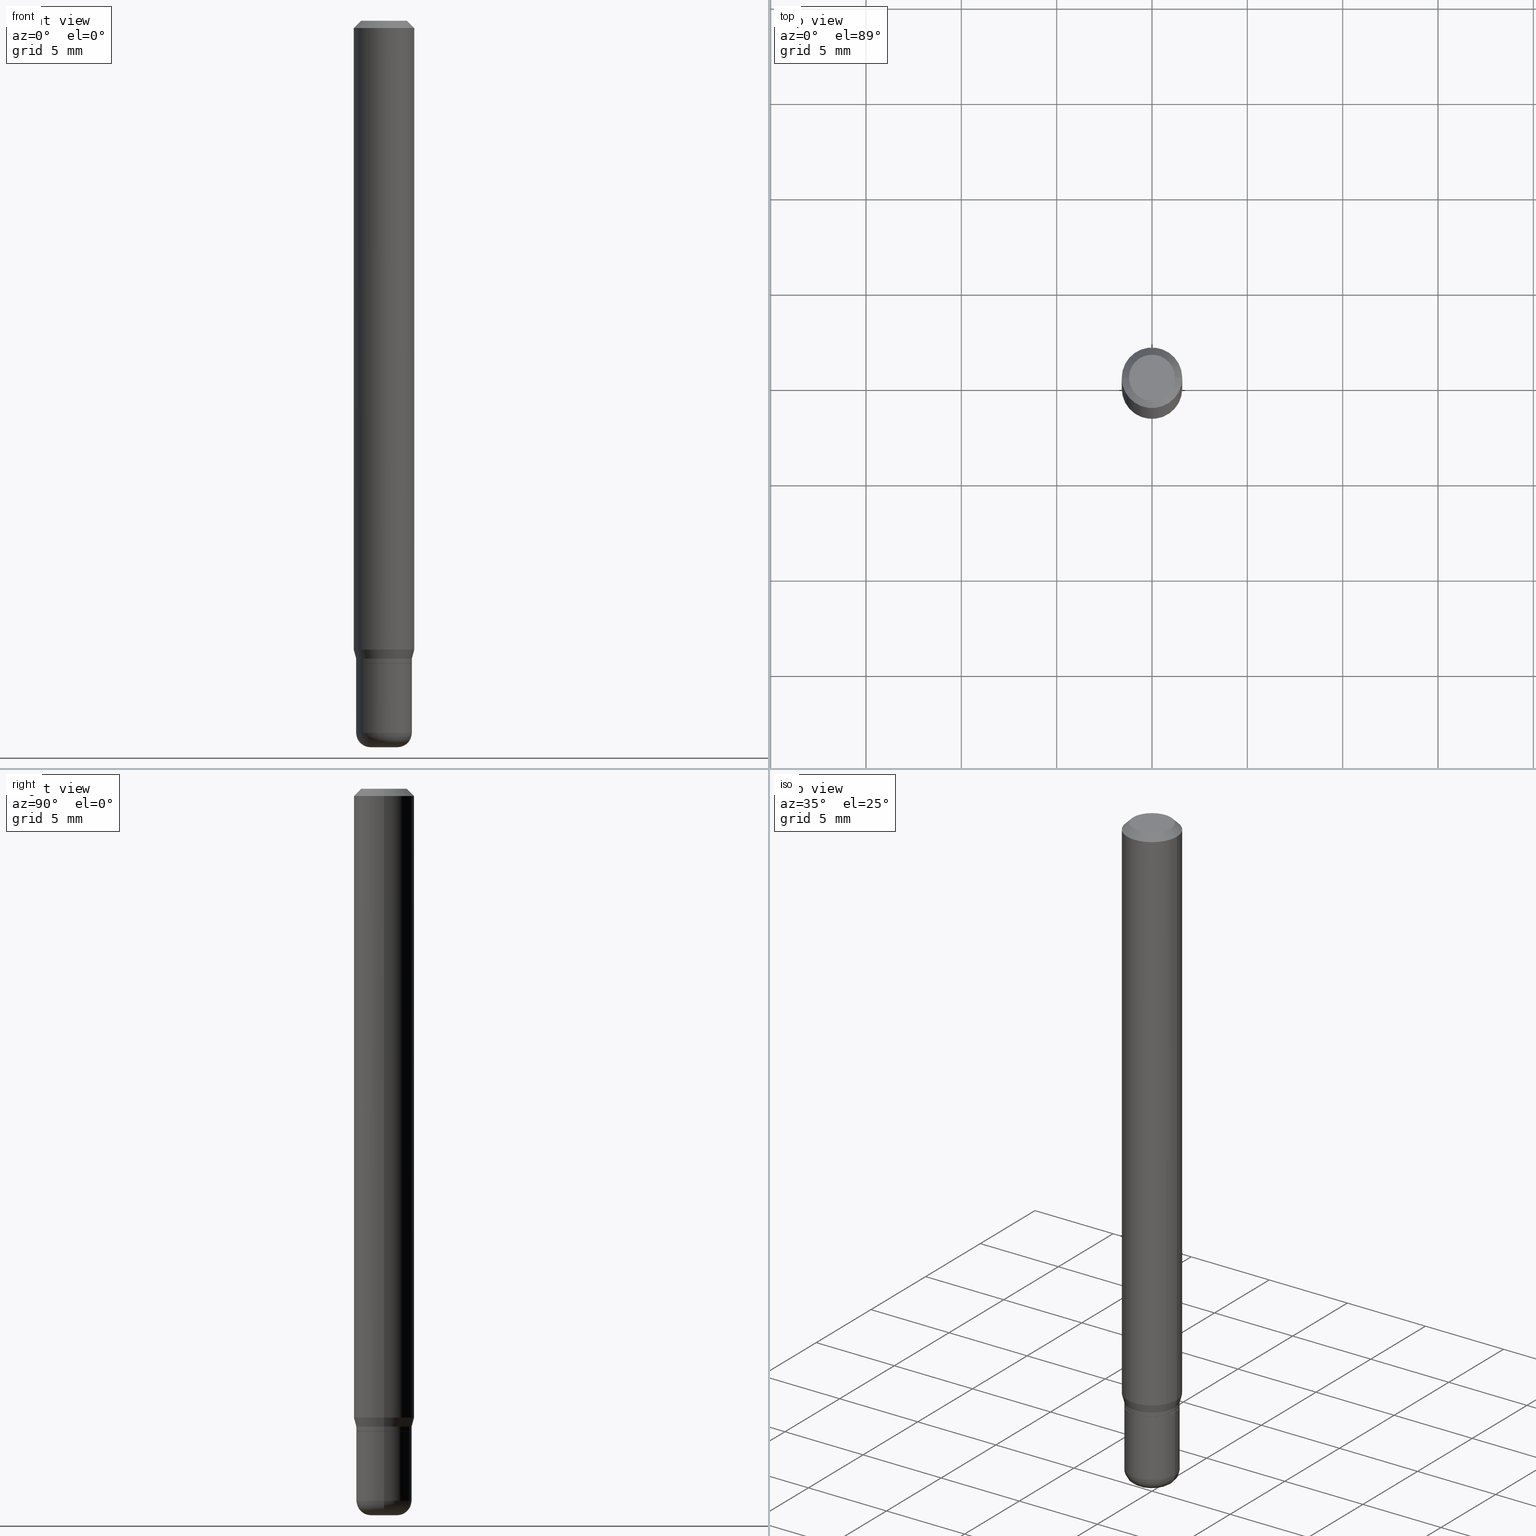
[diagram: canonical four-view strip — front | top / right | iso, engineering-drawing reading convention]
A machine part, canonical four-view strip (front | top / right | iso — engineering-drawing reading convention). The complete STEP part file that produces these views, byte-faithful:
ISO-10303-21;
HEADER;
FILE_DESCRIPTION (( 'STEP AP203' ),
    '1' );
FILE_NAME ('09254.STEP',
    '2024-03-01T00:03:34',
    ( '' ),
    ( '' ),
    'SwSTEP 2.0',
    'SolidWorks 2023',
    '' );
FILE_SCHEMA (( 'CONFIG_CONTROL_DESIGN' ));
ENDSEC;

DATA;
#1 = DIRECTION ( 'NONE',  ( -2.445468806185136597E-29, 3.491481338843145583E-15, 1.000000000000000000 ) ) ;
#2 = PRODUCT_DEFINITION ( 'UNKNOWN', '', #359, #382 ) ;
#3 = VERTEX_POINT ( 'NONE', #70 ) ;
#4 = ORIENTED_EDGE ( 'NONE', *, *, #450, .T. ) ;
#5 = CIRCLE ( 'NONE', #306, 0.02750000000000001055 ) ;
#6 = AXIS2_PLACEMENT_3D ( 'NONE', #20, #425, #222 ) ;
#7 = MECHANICAL_CONTEXT ( 'NONE', #226, 'mechanical' ) ;
#8 = PLANE ( 'NONE',  #511 ) ;
#9 = DATE_AND_TIME ( #36, #414 ) ;
#10 = ORIENTED_EDGE ( 'NONE', *, *, #198, .F. ) ;
#11 = ORIENTED_EDGE ( 'NONE', *, *, #384, .F. ) ;
#12 = LENGTH_MEASURE_WITH_UNIT ( LENGTH_MEASURE( 0.02539999999999999897 ), #252 );
#13 = ORIENTED_EDGE ( 'NONE', *, *, #487, .F. ) ;
#14 = DIRECTION ( 'NONE',  ( 1.000000000000000000, -6.982962677686265922E-15, 4.876176775795935793E-29 ) ) ;
#15 = CIRCLE ( 'NONE', #320, 0.05700000000000005757 ) ;
#16 = EDGE_CURVE ( 'NONE', #410, #67, #168, .T. ) ;
#17 = ORIENTED_EDGE ( 'NONE', *, *, #228, .T. ) ;
#18 = DIRECTION ( 'NONE',  ( 1.000000000000000000, -6.982962677686274599E-15, 0.000000000000000000 ) ) ;
#19 = FACE_OUTER_BOUND ( 'NONE', #256, .T. ) ;
#20 = CARTESIAN_POINT ( 'NONE',  ( -6.680649051745406845E-45, 9.538196290434862081E-31, 2.731847993664263218E-16 ) ) ;
#21 = CARTESIAN_POINT ( 'NONE',  ( -0.05750000000000000250, -4.474274579310081177E-15, -1.327000000000000179 ) ) ;
#22 = CARTESIAN_POINT ( 'NONE',  ( -0.02750000000000001055, -4.882869125484029039E-15, -1.500000000000000444 ) ) ;
#23 = ORIENTED_EDGE ( 'NONE', *, *, #78, .T. ) ;
#24 = DIRECTION ( 'NONE',  ( 1.000000000000000000, -6.982962677686266711E-15, 0.000000000000000000 ) ) ;
#25 = ADVANCED_FACE ( 'NONE', ( #137 ), #232, .T. ) ;
#26 = AXIS2_PLACEMENT_3D ( 'NONE', #328, #415, #362 ) ;
#27 = APPROVAL_PERSON_ORGANIZATION ( #187, #111, #153 ) ;
#28 = CARTESIAN_POINT ( 'NONE',  ( 0.04750000000000000749, -4.035134999187568762E-16, 2.731847993664288856E-16 ) ) ;
#29 = PERSON ( 'UNSPECIFIED', 'UNSPECIFIED', 'UNSPECIFIED', ('UNSPECIFIED'), ('UNSPECIFIED'), ('UNSPECIFIED') ) ;
#30 = CARTESIAN_POINT ( 'NONE',  ( 3.668203209277632395E-31, -5.237222008264614861E-17, -0.01499999999999970281 ) ) ;
#31 = AXIS2_PLACEMENT_3D ( 'NONE', #188, #183, #150 ) ;
#32 = DIRECTION ( 'NONE',  ( 1.000000000000000000, -6.982962677686262766E-15, 0.000000000000000000 ) ) ;
#33 = PERSON_AND_ORGANIZATION ( #29, #398 ) ;
#34 = DATE_AND_TIME ( #166, #192 ) ;
#35 = DIRECTION ( 'NONE',  ( -2.445468806185136877E-29, 3.491481338843145188E-15, 1.000000000000000000 ) ) ;
#36 = CALENDAR_DATE ( 2024, 29, 2 ) ;
#37 = VERTEX_POINT ( 'NONE', #219 ) ;
#38 = EDGE_CURVE ( 'NONE', #143, #410, #141, .T. ) ;
#39 = DIRECTION ( 'NONE',  ( -2.445468806185136597E-29, 3.491481338843145583E-15, 1.000000000000000000 ) ) ;
#40 = VECTOR ( 'NONE', #83, 39.37007874015748854 ) ;
#41 = CC_DESIGN_APPROVAL ( #146, ( #359 ) ) ;
#42 = DIRECTION ( 'NONE',  ( -2.445468806185136877E-29, 3.491481338843145188E-15, 1.000000000000000000 ) ) ;
#43 = CALENDAR_DATE ( 2024, 29, 2 ) ;
#44 = ORIENTED_EDGE ( 'NONE', *, *, #321, .T. ) ;
#45 = EDGE_LOOP ( 'NONE', ( #285, #95, #404, #480 ) ) ;
#46 = ORIENTED_EDGE ( 'NONE', *, *, #356, .T. ) ;
#47 = EDGE_LOOP ( 'NONE', ( #84, #327, #48, #458 ) ) ;
#48 = ORIENTED_EDGE ( 'NONE', *, *, #117, .F. ) ;
#49 = AXIS2_PLACEMENT_3D ( 'NONE', #184, #303, #467 ) ;
#50 = DIRECTION ( 'NONE',  ( -1.000000000000000000, 6.982962677686266711E-15, 0.000000000000000000 ) ) ;
#51 = DIRECTION ( 'NONE',  ( -2.445468806185136597E-29, 3.491481338843145583E-15, 1.000000000000000000 ) ) ;
#52 = DATE_TIME_ROLE ( 'classification_date' ) ;
#53 = DIRECTION ( 'NONE',  ( -2.445468806185136877E-29, 3.491481338843145188E-15, 1.000000000000000000 ) ) ;
#54 = EDGE_CURVE ( 'NONE', #344, #3, #418, .T. ) ;
#55 = CARTESIAN_POINT ( 'NONE',  ( 3.668203209277706016E-29, -5.237222008264719754E-15, -1.500000000000000444 ) ) ;
#56 = DIRECTION ( 'NONE',  ( -2.445468806185136597E-29, 3.491481338843145583E-15, 1.000000000000000000 ) ) ;
#57 = EDGE_LOOP ( 'NONE', ( #459, #336 ) ) ;
#58 = DIRECTION ( 'NONE',  ( 0.000000000000000000, 0.000000000000000000, 1.000000000000000000 ) ) ;
#59 = CARTESIAN_POINT ( 'NONE',  ( 3.245137105807676860E-29, -4.633195736644854276E-15, -1.327000000000000179 ) ) ;
#60 = VECTOR ( 'NONE', #464, 39.37007874015748143 ) ;
#61 = CIRCLE ( 'NONE', #495, 0.05750000000000012046 ) ;
#62 = AXIS2_PLACEMENT_3D ( 'NONE', #189, #151, #392 ) ;
#63 = ORIENTED_EDGE ( 'NONE', *, *, #278, .T. ) ;
#64 = ORIENTED_EDGE ( 'NONE', *, *, #130, .T. ) ;
#65 = DIRECTION ( 'NONE',  ( -2.445468806185136597E-29, 3.491481338843145583E-15, 1.000000000000000000 ) ) ;
#66 = CALENDAR_DATE ( 2024, 29, 2 ) ;
#67 = VERTEX_POINT ( 'NONE', #301 ) ;
#68 = FACE_OUTER_BOUND ( 'NONE', #209, .T. ) ;
#69 = PRODUCT_RELATED_PRODUCT_CATEGORY ( 'detail', '', ( #510 ) ) ;
#70 = CARTESIAN_POINT ( 'NONE',  ( 0.05750000000000000250, -5.034716090611815085E-15, -1.327000000000000179 ) ) ;
#71 = AXIS2_PLACEMENT_3D ( 'NONE', #215, #264, #261 ) ;
#72 = DIRECTION ( 'NONE',  ( -0.7071067811865479058, 2.468850131082261005E-15, -0.7071067811865471286 ) ) ;
#73 = MANIFOLD_SOLID_BREP ( 'Body-Move/Copy2[2]', #433 ) ;
#74 = PERSON_AND_ORGANIZATION_ROLE ( 'creator' ) ;
#75 = DATE_AND_TIME ( #239, #161 ) ;
#76 = CARTESIAN_POINT ( 'NONE',  ( -0.05750000000000005801, 4.085620730620580191E-16, -2.828387676896573865E-30 ) ) ;
#77 = TOROIDAL_SURFACE ( 'NONE', #62, 0.02750000000000000014, 0.03000000000000011685 ) ;
#78 = EDGE_CURVE ( 'NONE', #411, #318, #15, .T. ) ;
#79 = EDGE_LOOP ( 'NONE', ( #490, #389, #492, #123 ) ) ;
#80 = PERSON_AND_ORGANIZATION ( #29, #398 ) ;
#81 = APPROVAL_DATE_TIME ( #34, #111 ) ;
#82 = DIRECTION ( 'NONE',  ( -2.445468806185136597E-29, 3.491481338843145583E-15, 1.000000000000000000 ) ) ;
#83 = DIRECTION ( 'NONE',  ( -0.2588190451025189631, 5.211531920934535265E-15, 0.9659258262890687563 ) ) ;
#84 = ORIENTED_EDGE ( 'NONE', *, *, #271, .T. ) ;
#85 = AXIS2_PLACEMENT_3D ( 'NONE', #432, #395, #311 ) ;
#86 = DIRECTION ( 'NONE',  ( 1.000000000000000000, -6.982962677686263555E-15, 0.000000000000000000 ) ) ;
#87 = AXIS2_PLACEMENT_3D ( 'NONE', #273, #82, #86 ) ;
#88 = APPROVAL_STATUS ( 'not_yet_approved' ) ;
#89 = DIRECTION ( 'NONE',  ( 0.7071067811866199593, -2.468850131083015945E-15, 0.7071067811864750752 ) ) ;
#90 = ORIENTED_EDGE ( 'NONE', *, *, #400, .F. ) ;
#91 = FACE_OUTER_BOUND ( 'NONE', #99, .T. ) ;
#92 = DIRECTION ( 'NONE',  ( -2.445468806185136597E-29, 3.491481338843145583E-15, 1.000000000000000000 ) ) ;
#93 = ADVANCED_FACE ( 'NONE', ( #105 ), #426, .T. ) ;
#94 = CARTESIAN_POINT ( 'NONE',  ( 3.668203209277632395E-31, -5.237222008264614861E-17, -0.01499999999999970281 ) ) ;
#95 = ORIENTED_EDGE ( 'NONE', *, *, #203, .T. ) ;
#96 = VERTEX_POINT ( 'NONE', #499 ) ;
#97 = AXIS2_PLACEMENT_3D ( 'NONE', #509, #220, #355 ) ;
#98 = SECURITY_CLASSIFICATION ( '', '', #272 ) ;
#99 = EDGE_LOOP ( 'NONE', ( #330, #221 ) ) ;
#100 = CARTESIAN_POINT ( 'NONE',  ( 0.05750000000000007189, -4.015203539669608092E-16, 2.803801646082666444E-30 ) ) ;
#101 = EDGE_LOOP ( 'NONE', ( #10, #63, #177, #338 ) ) ;
#102 = ADVANCED_FACE ( 'NONE', ( #422 ), #284, .T. ) ;
#103 = DIRECTION ( 'NONE',  ( -2.445468806185136597E-29, 3.491481338843145583E-15, 1.000000000000000000 ) ) ;
#104 = DIRECTION ( 'NONE',  ( 2.438088387897960049E-29, -3.491481338843145188E-15, -1.000000000000000000 ) ) ;
#105 = FACE_OUTER_BOUND ( 'NONE', #368, .T. ) ;
#106 = AXIS2_PLACEMENT_3D ( 'NONE', #319, #483, #446 ) ;
#107 = CONICAL_SURFACE ( 'NONE', #49, 0.05750000000000008576, 0.2617993877991475760 ) ;
#108 = FACE_OUTER_BOUND ( 'NONE', #374, .T. ) ;
#109 = CARTESIAN_POINT ( 'NONE',  ( -0.06250000000000000000, -1.848661397443869877E-15, -0.01499999999999970281 ) ) ;
#110 = DIRECTION ( 'NONE',  ( -2.445468806185136597E-29, 3.491481338843145583E-15, 1.000000000000000000 ) ) ;
#111 = APPROVAL ( #430, 'UNSPECIFIED' ) ;
#112 = DIRECTION ( 'NONE',  ( 1.000000000000000000, -6.982962677686266711E-15, 0.000000000000000000 ) ) ;
#113 = CARTESIAN_POINT ( 'NONE',  ( 3.594839145092150820E-29, -5.132477568099424807E-15, -1.470000000000000195 ) ) ;
#114 = DIRECTION ( 'NONE',  ( 1.000000000000000000, -6.982962677686266711E-15, 4.876176775795936353E-29 ) ) ;
#115 = CIRCLE ( 'NONE', #466, 0.05750000000000012046 ) ;
#116 = CARTESIAN_POINT ( 'NONE',  ( 0.05750000000000012046, -5.533997922066385616E-15, -1.470000000000000195 ) ) ;
#117 = EDGE_CURVE ( 'NONE', #3, #126, #230, .T. ) ;
#118 = AXIS2_PLACEMENT_3D ( 'NONE', #94, #372, #412 ) ;
#119 = LOCAL_TIME ( 19, 3, 34.00000000000000000, #244 ) ;
#120 = EDGE_CURVE ( 'NONE', #461, #128, #233, .T. ) ;
#121 = DIRECTION ( 'NONE',  ( 1.000000000000000000, -6.982962677686259611E-15, 0.000000000000000000 ) ) ;
#122 = DIRECTION ( 'NONE',  ( 1.000000000000000000, -6.982962677686266711E-15, 0.000000000000000000 ) ) ;
#123 = ORIENTED_EDGE ( 'NONE', *, *, #346, .F. ) ;
#124 = CONICAL_SURFACE ( 'NONE', #191, 0.06250000000000000000, 0.7853981633974488341 ) ;
#125 = CARTESIAN_POINT ( 'NONE',  ( 3.245137105807676860E-29, -4.633195736644854276E-15, -1.327000000000000179 ) ) ;
#126 = VERTEX_POINT ( 'NONE', #21 ) ;
#127 = ADVANCED_BREP_SHAPE_REPRESENTATION ( '09254', ( #419, #73, #181 ), #507 ) ;
#128 = VERTEX_POINT ( 'NONE', #391 ) ;
#129 = CARTESIAN_POINT ( 'NONE',  ( 0.05700000000000005757, -5.031224609272972078E-15, -1.327000000000000179 ) ) ;
#130 = EDGE_CURVE ( 'NONE', #96, #242, #5, .T. ) ;
#131 = ORIENTED_EDGE ( 'NONE', *, *, #208, .F. ) ;
#132 = EDGE_LOOP ( 'NONE', ( #64, #288, #292, #211 ) ) ;
#133 = CYLINDRICAL_SURFACE ( 'NONE', #26, 0.06250000000000000000 ) ;
#134 = DIRECTION ( 'NONE',  ( -6.982962677686266711E-15, -1.000000000000000000, 3.491481338843145583E-15 ) ) ;
#135 = ORIENTED_EDGE ( 'NONE', *, *, #228, .F. ) ;
#136 = ORIENTED_EDGE ( 'NONE', *, *, #38, .T. ) ;
#137 = FACE_OUTER_BOUND ( 'NONE', #101, .T. ) ;
#138 = CARTESIAN_POINT ( 'NONE',  ( 3.243914371404584059E-29, -4.631449995975432773E-15, -1.326500000000000234 ) ) ;
#139 = CARTESIAN_POINT ( 'NONE',  ( 4.015203539669927580E-16, 0.05749999999999536732, -1.327000000000000401 ) ) ;
#140 = ORIENTED_EDGE ( 'NONE', *, *, #396, .F. ) ;
#141 = LINE ( 'NONE', #100, #60 ) ;
#142 = DIRECTION ( 'NONE',  ( 0.7071067811865479058, -7.319954787623257623E-15, -0.7071067811865471286 ) ) ;
#143 = VERTEX_POINT ( 'NONE', #416 ) ;
#144 = CARTESIAN_POINT ( 'NONE',  ( 3.220682417745826436E-29, -4.598280923256424205E-15, -1.317000000000000393 ) ) ;
#145 = CLOSED_SHELL ( 'NONE', ( #508, #246, #439, #512, #25, #375 ) ) ;
#146 = APPROVAL ( #88, 'UNSPECIFIED' ) ;
#147 = CIRCLE ( 'NONE', #442, 0.03000000000000012032 ) ;
#148 = CONICAL_SURFACE ( 'NONE', #31, 0.05700000000000005757, 0.7853981633975507526 ) ;
#149 = CIRCLE ( 'NONE', #408, 0.06250000000000000000 ) ;
#150 = DIRECTION ( 'NONE',  ( 1.000000000000000000, -6.982962677686274599E-15, 0.000000000000000000 ) ) ;
#151 = DIRECTION ( 'NONE',  ( -2.445468806185136597E-29, 3.491481338843145583E-15, 1.000000000000000000 ) ) ;
#152 = ORIENTED_EDGE ( 'NONE', *, *, #158, .T. ) ;
#153 = APPROVAL_ROLE ( '' ) ;
#154 = DIRECTION ( 'NONE',  ( -2.445468806185136597E-29, 3.491481338843145583E-15, 1.000000000000000000 ) ) ;
#155 = DATE_AND_TIME ( #66, #235 ) ;
#156 = AXIS2_PLACEMENT_3D ( 'NONE', #353, #154, #114 ) ;
#157 = CYLINDRICAL_SURFACE ( 'NONE', #313, 0.05750000000000005801 ) ;
#158 = EDGE_CURVE ( 'NONE', #67, #405, #453, .T. ) ;
#159 = CC_DESIGN_DATE_AND_TIME_ASSIGNMENT ( #9, #52, ( #98 ) ) ;
#160 = ORIENTED_EDGE ( 'NONE', *, *, #208, .T. ) ;
#161 = LOCAL_TIME ( 19, 3, 34.00000000000000000, #363 ) ;
#162 = DATE_AND_TIME ( #43, #119 ) ;
#163 = LINE ( 'NONE', #326, #370 ) ;
#164 = ORIENTED_EDGE ( 'NONE', *, *, #341, .F. ) ;
#165 = EDGE_CURVE ( 'NONE', #410, #449, #247, .T. ) ;
#166 = CALENDAR_DATE ( 2024, 29, 2 ) ;
#167 = APPROVAL_DATE_TIME ( #162, #146 ) ;
#168 = CIRCLE ( 'NONE', #283, 0.05750000000000008576 ) ;
#169 = ORIENTED_EDGE ( 'NONE', *, *, #346, .T. ) ;
#170 = CIRCLE ( 'NONE', #457, 0.06250000000000000000 ) ;
#171 = VECTOR ( 'NONE', #357, 39.37007874015748143 ) ;
#172 = DIRECTION ( 'NONE',  ( 1.000000000000000000, -6.982962677686265922E-15, 4.876176775795935793E-29 ) ) ;
#173 = EDGE_CURVE ( 'NONE', #318, #143, #163, .T. ) ;
#174 =( CONVERSION_BASED_UNIT ( 'INCH', #12 ) LENGTH_UNIT ( ) NAMED_UNIT ( #437 ) );
#175 = ORIENTED_EDGE ( 'NONE', *, *, #173, .T. ) ;
#176 = DIRECTION ( 'NONE',  ( -2.445468806185136597E-29, 3.491481338843145583E-15, 1.000000000000000000 ) ) ;
#177 = ORIENTED_EDGE ( 'NONE', *, *, #212, .T. ) ;
#178 = APPLICATION_PROTOCOL_DEFINITION ( 'international standard', 'config_control_design', 1994, #226 ) ;
#179 = CIRCLE ( 'NONE', #451, 0.02750000000000001055 ) ;
#180 = CARTESIAN_POINT ( 'NONE',  ( 3.245137105807676860E-29, -4.633195736644854276E-15, -1.327000000000000179 ) ) ;
#181 = AXIS2_PLACEMENT_3D ( 'NONE', #421, #58, #217 ) ;
#182 = CARTESIAN_POINT ( 'NONE',  ( 3.245137105807676860E-29, -4.633195736644854276E-15, -1.327000000000000179 ) ) ;
#183 = DIRECTION ( 'NONE',  ( -2.445468806185136597E-29, 3.491481338843145583E-15, 1.000000000000000000 ) ) ;
#184 = CARTESIAN_POINT ( 'NONE',  ( 3.220682417745826436E-29, -4.598280923256424205E-15, -1.317000000000000393 ) ) ;
#185 = EDGE_CURVE ( 'NONE', #126, #3, #337, .T. ) ;
#186 = ORIENTED_EDGE ( 'NONE', *, *, #384, .T. ) ;
#187 = PERSON_AND_ORGANIZATION ( #29, #398 ) ;
#188 = CARTESIAN_POINT ( 'NONE',  ( 3.245137105807676860E-29, -4.633195736644854276E-15, -1.327000000000000179 ) ) ;
#189 = CARTESIAN_POINT ( 'NONE',  ( 3.594839145092150820E-29, -5.132477568099424807E-15, -1.470000000000000195 ) ) ;
#190 = DIRECTION ( 'NONE',  ( -2.445468806185136597E-29, 3.491481338843145583E-15, 1.000000000000000000 ) ) ;
#191 = AXIS2_PLACEMENT_3D ( 'NONE', #253, #494, #50 ) ;
#192 = LOCAL_TIME ( 19, 3, 34.00000000000000000, #516 ) ;
#193 = DIRECTION ( 'NONE',  ( 1.000000000000000000, -6.982962677686263555E-15, 0.000000000000000000 ) ) ;
#194 = CARTESIAN_POINT ( 'NONE',  ( -0.05750000000000005801, -4.222887922913375197E-15, -1.326500000000000234 ) ) ;
#195 = COORDINATED_UNIVERSAL_TIME_OFFSET ( 5, 0, .BEHIND. ) ;
#196 = LINE ( 'NONE', #76, #171 ) ;
#197 = AXIS2_PLACEMENT_3D ( 'NONE', #477, #1, #32 ) ;
#198 = EDGE_CURVE ( 'NONE', #242, #37, #312, .T. ) ;
#199 = ADVANCED_FACE ( 'NONE', ( #465 ), #148, .T. ) ;
#200 = CARTESIAN_POINT ( 'NONE',  ( 0.000000000000000000, 0.000000000000000000, 0.000000000000000000 ) ) ;
#201 = ORIENTED_EDGE ( 'NONE', *, *, #117, .T. ) ;
#202 = VECTOR ( 'NONE', #364, 39.37007874015748854 ) ;
#203 = EDGE_CURVE ( 'NONE', #411, #206, #420, .T. ) ;
#204 = CARTESIAN_POINT ( 'NONE',  ( 0.05750000000000008576, -4.999801277223385014E-15, -1.317000000000000393 ) ) ;
#205 = EDGE_LOOP ( 'NONE', ( #468, #152, #164, #286 ) ) ;
#206 = VERTEX_POINT ( 'NONE', #194 ) ;
#207 = DIRECTION ( 'NONE',  ( 1.000000000000000000, -6.982962677686276966E-15, 0.000000000000000000 ) ) ;
#208 = EDGE_CURVE ( 'NONE', #497, #445, #515, .T. ) ;
#209 = EDGE_LOOP ( 'NONE', ( #90, #332, #281, #214 ) ) ;
#210 = FACE_OUTER_BOUND ( 'NONE', #444, .T. ) ;
#211 = ORIENTED_EDGE ( 'NONE', *, *, #212, .F. ) ;
#212 = EDGE_CURVE ( 'NONE', #96, #344, #147, .T. ) ;
#213 = EDGE_LOOP ( 'NONE', ( #201, #302 ) ) ;
#214 = ORIENTED_EDGE ( 'NONE', *, *, #185, .F. ) ;
#215 = CARTESIAN_POINT ( 'NONE',  ( 0.000000000000000000, 0.000000000000000000, 0.000000000000000000 ) ) ;
#216 = ORIENTED_EDGE ( 'NONE', *, *, #203, .F. ) ;
#217 = DIRECTION ( 'NONE',  ( 1.000000000000000000, 0.000000000000000000, 0.000000000000000000 ) ) ;
#218 = VECTOR ( 'NONE', #460, 39.37007874015748143 ) ;
#219 = CARTESIAN_POINT ( 'NONE',  ( -0.05750000000000012046, -4.474274579310080389E-15, -1.470000000000000195 ) ) ;
#220 = DIRECTION ( 'NONE',  ( 7.105427357601001859E-15, 1.000000000000000000, -3.491481338843145583E-15 ) ) ;
#221 = ORIENTED_EDGE ( 'NONE', *, *, #278, .F. ) ;
#222 = DIRECTION ( 'NONE',  ( 1.000000000000000000, -6.982962677686266711E-15, 4.852736867747365086E-29 ) ) ;
#223 = CARTESIAN_POINT ( 'NONE',  ( 0.000000000000000000, 0.000000000000000000, 0.000000000000000000 ) ) ;
#224 = CARTESIAN_POINT ( 'NONE',  ( 3.220682417745826436E-29, -4.598280923256424205E-15, -1.317000000000000393 ) ) ;
#225 = DIRECTION ( 'NONE',  ( 1.000000000000000000, -6.982962677686274599E-15, 0.000000000000000000 ) ) ;
#226 = APPLICATION_CONTEXT ( 'configuration controlled 3d designs of mechanical parts and assemblies' ) ;
#227 = LINE ( 'NONE', #342, #476 ) ;
#228 = EDGE_CURVE ( 'NONE', #461, #445, #309, .T. ) ;
#229 = DIRECTION ( 'NONE',  ( 1.000000000000000000, -6.982962677686258822E-15, 4.883557194083110098E-29 ) ) ;
#230 = CIRCLE ( 'NONE', #434, 0.05750000000000000250 ) ;
#231 = CC_DESIGN_PERSON_AND_ORGANIZATION_ASSIGNMENT ( #469, #74, ( #2 ) ) ;
#232 = TOROIDAL_SURFACE ( 'NONE', #304, 0.02750000000000000014, 0.03000000000000011685 ) ;
#233 = CIRCLE ( 'NONE', #240, 0.04750000000000000749 ) ;
#234 = ADVANCED_FACE ( 'NONE', ( #108 ), #258, .T. ) ;
#235 = LOCAL_TIME ( 19, 3, 34.00000000000000000, #195 ) ;
#236 = DIRECTION ( 'NONE',  ( -2.445468806185136597E-29, 3.491481338843145583E-15, 1.000000000000000000 ) ) ;
#237 = ORIENTED_EDGE ( 'NONE', *, *, #396, .T. ) ;
#238 = EDGE_CURVE ( 'NONE', #67, #410, #378, .T. ) ;
#239 = CALENDAR_DATE ( 2024, 29, 2 ) ;
#240 = AXIS2_PLACEMENT_3D ( 'NONE', #343, #263, #429 ) ;
#241 = APPROVAL_PERSON_ORGANIZATION ( #80, #146, #366 ) ;
#242 = VERTEX_POINT ( 'NONE', #22 ) ;
#243 = CC_DESIGN_PERSON_AND_ORGANIZATION_ASSIGNMENT ( #282, #276, ( #359 ) ) ;
#244 = COORDINATED_UNIVERSAL_TIME_OFFSET ( 5, 0, .BEHIND. ) ;
#245 = ORIENTED_EDGE ( 'NONE', *, *, #38, .F. ) ;
#246 = ADVANCED_FACE ( 'NONE', ( #297 ), #470, .T. ) ;
#247 = LINE ( 'NONE', #204, #202 ) ;
#248 = DIRECTION ( 'NONE',  ( 1.000000000000000000, -6.982962677686259611E-15, 0.000000000000000000 ) ) ;
#249 = ORIENTED_EDGE ( 'NONE', *, *, #473, .F. ) ;
#250 = CIRCLE ( 'NONE', #474, 0.05700000000000005757 ) ;
#251 = CC_DESIGN_SECURITY_CLASSIFICATION ( #98, ( #359 ) ) ;
#252 =( LENGTH_UNIT ( ) NAMED_UNIT ( * ) SI_UNIT ( $, .METRE. ) );
#253 = CARTESIAN_POINT ( 'NONE',  ( 3.668203209277632395E-31, -5.237222008264614861E-17, -0.01499999999999970281 ) ) ;
#254 = CARTESIAN_POINT ( 'NONE',  ( 0.05750000000000005801, -4.015203539669607599E-16, 2.803801646082666094E-30 ) ) ;
#255 = DIRECTION ( 'NONE',  ( -1.000000000000000000, 6.982962677686265922E-15, -4.876176775795935793E-29 ) ) ;
#256 = EDGE_LOOP ( 'NONE', ( #361, #322, #11, #447 ) ) ;
#257 = EDGE_CURVE ( 'NONE', #405, #497, #347, .T. ) ;
#258 = CYLINDRICAL_SURFACE ( 'NONE', #71, 0.05750000000000007189 ) ;
#259 = ORIENTED_EDGE ( 'NONE', *, *, #16, .F. ) ;
#260 = CARTESIAN_POINT ( 'NONE',  ( -0.05700000000000005757, -4.225537150087485609E-15, -1.327000000000000179 ) ) ;
#261 = DIRECTION ( 'NONE',  ( 1.000000000000000000, -6.982962677686265922E-15, 4.876176775795935793E-29 ) ) ;
#262 = FACE_OUTER_BOUND ( 'NONE', #132, .T. ) ;
#263 = DIRECTION ( 'NONE',  ( -2.445468806185136597E-29, 3.491481338843145583E-15, 1.000000000000000000 ) ) ;
#264 = DIRECTION ( 'NONE',  ( -2.445468806185136597E-29, 3.491481338843145583E-15, 1.000000000000000000 ) ) ;
#265 = EDGE_CURVE ( 'NONE', #37, #344, #115, .T. ) ;
#266 = FACE_OUTER_BOUND ( 'NONE', #79, .T. ) ;
#267 = DIRECTION ( 'NONE',  ( -2.445468806185136597E-29, 3.491481338843145583E-15, 1.000000000000000000 ) ) ;
#268 = CC_DESIGN_DATE_AND_TIME_ASSIGNMENT ( #75, #323, ( #2 ) ) ;
#269 = APPROVAL_DATE_TIME ( #155, #478 ) ;
#270 = DIRECTION ( 'NONE',  ( -2.445468806185136597E-29, 3.491481338843145583E-15, 1.000000000000000000 ) ) ;
#271 = EDGE_CURVE ( 'NONE', #344, #37, #61, .T. ) ;
#272 = SECURITY_CLASSIFICATION_LEVEL ( 'unclassified' ) ;
#273 = CARTESIAN_POINT ( 'NONE',  ( 3.220682417745826436E-29, -4.598280923256424205E-15, -1.317000000000000393 ) ) ;
#274 = CARTESIAN_POINT ( 'NONE',  ( 0.06250000000000000000, -4.364351673553916694E-16, 3.047610484872459871E-30 ) ) ;
#275 = AXIS2_PLACEMENT_3D ( 'NONE', #295, #456, #255 ) ;
#276 = PERSON_AND_ORGANIZATION_ROLE ( 'creator' ) ;
#277 = PERSON_AND_ORGANIZATION_ROLE ( 'design_owner' ) ;
#278 = EDGE_CURVE ( 'NONE', #242, #96, #179, .T. ) ;
#279 = ORIENTED_EDGE ( 'NONE', *, *, #238, .F. ) ;
#280 = DIRECTION ( 'NONE',  ( 1.000000000000000000, -6.982962677686266711E-15, 4.876176775795936353E-29 ) ) ;
#281 = ORIENTED_EDGE ( 'NONE', *, *, #54, .T. ) ;
#282 = PERSON_AND_ORGANIZATION ( #29, #398 ) ;
#283 = AXIS2_PLACEMENT_3D ( 'NONE', #144, #190, #310 ) ;
#284 = CONICAL_SURFACE ( 'NONE', #413, 0.05700000000000005757, 0.7853981633975507526 ) ;
#285 = ORIENTED_EDGE ( 'NONE', *, *, #331, .T. ) ;
#286 = ORIENTED_EDGE ( 'NONE', *, *, #165, .F. ) ;
#287 = ADVANCED_FACE ( 'NONE', ( #489 ), #8, .F. ) ;
#288 = ORIENTED_EDGE ( 'NONE', *, *, #198, .T. ) ;
#289 = FACE_OUTER_BOUND ( 'NONE', #57, .T. ) ;
#290 = EDGE_LOOP ( 'NONE', ( #216, #23, #175, #454 ) ) ;
#291 = DIRECTION ( 'NONE',  ( 1.000000000000000000, -6.982962677686274599E-15, 0.000000000000000000 ) ) ;
#292 = ORIENTED_EDGE ( 'NONE', *, *, #271, .F. ) ;
#293 = AXIS2_PLACEMENT_3D ( 'NONE', #223, #65, #14 ) ;
#294 =( NAMED_UNIT ( * ) PLANE_ANGLE_UNIT ( ) SI_UNIT ( $, .RADIAN. ) );
#295 = CARTESIAN_POINT ( 'NONE',  ( 3.316907271900976589E-16, 0.04750000000000000749, -2.925296391183627249E-17 ) ) ;
#296 = APPLICATION_CONTEXT ( 'configuration controlled 3d designs of mechanical parts and assemblies' ) ;
#297 = FACE_OUTER_BOUND ( 'NONE', #47, .T. ) ;
#298 = ADVANCED_FACE ( 'NONE', ( #289 ), #369, .F. ) ;
#299 = DIRECTION ( 'NONE',  ( 1.000000000000000000, -6.982962677686266711E-15, 0.000000000000000000 ) ) ;
#300 = CARTESIAN_POINT ( 'NONE',  ( 0.06250000000000000000, -4.811533449433669144E-16, -0.01499999999999970281 ) ) ;
#301 = CARTESIAN_POINT ( 'NONE',  ( -0.05750000000000008576, -4.139379317424761157E-15, -1.317000000000000393 ) ) ;
#302 = ORIENTED_EDGE ( 'NONE', *, *, #185, .T. ) ;
#303 = DIRECTION ( 'NONE',  ( -2.445468806185136597E-29, 3.491481338843145583E-15, 1.000000000000000000 ) ) ;
#304 = AXIS2_PLACEMENT_3D ( 'NONE', #113, #267, #229 ) ;
#305 = APPROVAL_STATUS ( 'not_yet_approved' ) ;
#306 = AXIS2_PLACEMENT_3D ( 'NONE', #455, #51, #448 ) ;
#307 = CONICAL_SURFACE ( 'NONE', #87, 0.05750000000000008576, 0.2617993877991475760 ) ;
#308 = ADVANCED_FACE ( 'NONE', ( #339 ), #349, .T. ) ;
#309 = LINE ( 'NONE', #300, #441 ) ;
#310 = DIRECTION ( 'NONE',  ( 1.000000000000000000, -6.982962677686263555E-15, 0.000000000000000000 ) ) ;
#311 = DIRECTION ( 'NONE',  ( 1.000000000000000000, -6.982962677686273810E-15, 0.000000000000000000 ) ) ;
#312 = CIRCLE ( 'NONE', #97, 0.03000000000000012032 ) ;
#313 = AXIS2_PLACEMENT_3D ( 'NONE', #200, #270, #280 ) ;
#314 = ADVANCED_FACE ( 'NONE', ( #210 ), #124, .T. ) ;
#315 = FACE_OUTER_BOUND ( 'NONE', #205, .T. ) ;
#316 = LINE ( 'NONE', #274, #488 ) ;
#317 = CARTESIAN_POINT ( 'NONE',  ( 3.594839145092150820E-29, -5.132477568099424807E-15, -1.470000000000000195 ) ) ;
#318 = VERTEX_POINT ( 'NONE', #129 ) ;
#319 = CARTESIAN_POINT ( 'NONE',  ( 0.000000000000000000, 0.000000000000000000, 0.000000000000000000 ) ) ;
#320 = AXIS2_PLACEMENT_3D ( 'NONE', #180, #376, #225 ) ;
#321 = EDGE_CURVE ( 'NONE', #206, #143, #481, .T. ) ;
#322 = ORIENTED_EDGE ( 'NONE', *, *, #257, .T. ) ;
#323 = DATE_TIME_ROLE ( 'creation_date' ) ;
#324 = CC_DESIGN_PERSON_AND_ORGANIZATION_ASSIGNMENT ( #452, #409, ( #359 ) ) ;
#325 = CARTESIAN_POINT ( 'NONE',  ( 3.594839145092150820E-29, -5.132477568099424807E-15, -1.470000000000000195 ) ) ;
#326 = CARTESIAN_POINT ( 'NONE',  ( 0.05700000000000005757, -5.031224609272972078E-15, -1.327000000000000179 ) ) ;
#327 = ORIENTED_EDGE ( 'NONE', *, *, #400, .T. ) ;
#328 = CARTESIAN_POINT ( 'NONE',  ( 0.000000000000000000, 0.000000000000000000, 0.000000000000000000 ) ) ;
#329 = AXIS2_PLACEMENT_3D ( 'NONE', #502, #350, #436 ) ;
#330 = ORIENTED_EDGE ( 'NONE', *, *, #130, .F. ) ;
#331 = EDGE_CURVE ( 'NONE', #318, #411, #250, .T. ) ;
#332 = ORIENTED_EDGE ( 'NONE', *, *, #265, .T. ) ;
#333 = EDGE_LOOP ( 'NONE', ( #135, #249, #237, #160 ) ) ;
#334 = PERSON_AND_ORGANIZATION ( #29, #398 ) ;
#335 = ADVANCED_FACE ( 'NONE', ( #19 ), #133, .T. ) ;
#336 = ORIENTED_EDGE ( 'NONE', *, *, #120, .T. ) ;
#337 = CIRCLE ( 'NONE', #85, 0.05750000000000000250 ) ;
#338 = ORIENTED_EDGE ( 'NONE', *, *, #265, .F. ) ;
#339 = FACE_OUTER_BOUND ( 'NONE', #333, .T. ) ;
#340 = CARTESIAN_POINT ( 'NONE',  ( 3.668203209277632395E-31, -5.237222008264614861E-17, -0.01499999999999970281 ) ) ;
#341 = EDGE_CURVE ( 'NONE', #449, #405, #424, .T. ) ;
#342 = CARTESIAN_POINT ( 'NONE',  ( -0.05750000000000007189, 4.085620730620581177E-16, -2.828387676896574216E-30 ) ) ;
#343 = CARTESIAN_POINT ( 'NONE',  ( -6.680649051745406845E-45, 9.538196290434862081E-31, 2.731847993664263218E-16 ) ) ;
#344 = VERTEX_POINT ( 'NONE', #116 ) ;
#345 = CARTESIAN_POINT ( 'NONE',  ( 0.06250000000000000000, -4.888073874380378612E-16, -0.01499999999999970281 ) ) ;
#346 = EDGE_CURVE ( 'NONE', #405, #449, #170, .T. ) ;
#347 = LINE ( 'NONE', #484, #504 ) ;
#348 = DIRECTION ( 'NONE',  ( -1.000000000000000000, 6.982962677686265922E-15, -4.876176775795935793E-29 ) ) ;
#349 = CONICAL_SURFACE ( 'NONE', #118, 0.06250000000000000000, 0.7853981633974488341 ) ;
#350 = DIRECTION ( 'NONE',  ( -2.438088387897960049E-29, 3.491481338843145188E-15, 1.000000000000000000 ) ) ;
#351 = APPROVAL_PERSON_ORGANIZATION ( #417, #478, #462 ) ;
#352 = CC_DESIGN_PERSON_AND_ORGANIZATION_ASSIGNMENT ( #33, #438, ( #98 ) ) ;
#353 = CARTESIAN_POINT ( 'NONE',  ( 0.000000000000000000, 0.000000000000000000, 0.000000000000000000 ) ) ;
#354 = PRODUCT_DEFINITION_SHAPE ( 'NONE', 'NONE',  #2 ) ;
#355 = DIRECTION ( 'NONE',  ( -1.000000000000000000, 7.105427357600994759E-15, 0.000000000000000000 ) ) ;
#356 = EDGE_CURVE ( 'NONE', #449, #445, #316, .T. ) ;
#357 = DIRECTION ( 'NONE',  ( -2.445468806185136877E-29, 3.491481338843145188E-15, 1.000000000000000000 ) ) ;
#358 = VECTOR ( 'NONE', #53, 39.37007874015748143 ) ;
#359 = PRODUCT_DEFINITION_FORMATION_WITH_SPECIFIED_SOURCE ( 'ANY', '', #510, .NOT_KNOWN. ) ;
#360 = FACE_OUTER_BOUND ( 'NONE', #365, .T. ) ;
#361 = ORIENTED_EDGE ( 'NONE', *, *, #341, .T. ) ;
#362 = DIRECTION ( 'NONE',  ( 1.000000000000000000, -6.982962677686266711E-15, 4.876176775795935793E-29 ) ) ;
#363 = COORDINATED_UNIVERSAL_TIME_OFFSET ( 5, 0, .BEHIND. ) ;
#364 = DIRECTION ( 'NONE',  ( 0.2588190451025189631, 1.565188264969641295E-15, 0.9659258262890687563 ) ) ;
#365 = EDGE_LOOP ( 'NONE', ( #383, #169, #46, #131 ) ) ;
#366 = APPROVAL_ROLE ( '' ) ;
#367 = ADVANCED_FACE ( 'NONE', ( #360 ), #514, .T. ) ;
#368 = EDGE_LOOP ( 'NONE', ( #13, #44, #136, #279 ) ) ;
#369 = PLANE ( 'NONE',  #275 ) ;
#370 = VECTOR ( 'NONE', #89, 39.37007874015748143 ) ;
#371 = AXIS2_PLACEMENT_3D ( 'NONE', #506, #428, #24 ) ;
#372 = DIRECTION ( 'NONE',  ( 2.445468806185136597E-29, -3.491481338843145583E-15, -1.000000000000000000 ) ) ;
#373 = CARTESIAN_POINT ( 'NONE',  ( -0.05750000000000008576, -4.189718850194366629E-15, -1.317000000000000393 ) ) ;
#374 = EDGE_LOOP ( 'NONE', ( #4, #485, #259, #245 ) ) ;
#375 = ADVANCED_FACE ( 'NONE', ( #91 ), #475, .F. ) ;
#376 = DIRECTION ( 'NONE',  ( -2.445468806185136597E-29, 3.491481338843145583E-15, 1.000000000000000000 ) ) ;
#377 = DIRECTION ( 'NONE',  ( -2.438088387897960049E-29, 3.491481338843145188E-15, 1.000000000000000000 ) ) ;
#378 = CIRCLE ( 'NONE', #393, 0.05750000000000008576 ) ;
#379 = CIRCLE ( 'NONE', #6, 0.04750000000000000749 ) ;
#380 = DIRECTION ( 'NONE',  ( -2.445468806185136597E-29, 3.491481338843145583E-15, 1.000000000000000000 ) ) ;
#381 = DIRECTION ( 'NONE',  ( -2.445468806185136597E-29, 3.491481338843145583E-15, 1.000000000000000000 ) ) ;
#382 = DESIGN_CONTEXT ( 'detailed design', #296, 'design' ) ;
#383 = ORIENTED_EDGE ( 'NONE', *, *, #257, .F. ) ;
#384 = EDGE_CURVE ( 'NONE', #445, #497, #149, .T. ) ;
#385 = DIRECTION ( 'NONE',  ( -2.445468806185136877E-29, 3.491481338843145188E-15, 1.000000000000000000 ) ) ;
#386 = ORIENTED_EDGE ( 'NONE', *, *, #78, .F. ) ;
#387 = DIRECTION ( 'NONE',  ( 1.000000000000000000, -6.982962677686273810E-15, 0.000000000000000000 ) ) ;
#388 = DIRECTION ( 'NONE',  ( -2.445468806185136597E-29, 3.491481338843145583E-15, 1.000000000000000000 ) ) ;
#389 = ORIENTED_EDGE ( 'NONE', *, *, #238, .T. ) ;
#390 = FACE_OUTER_BOUND ( 'NONE', #213, .T. ) ;
#391 = CARTESIAN_POINT ( 'NONE',  ( -0.04750000000000000749, 3.578768372314221353E-16, 2.731847993664239060E-16 ) ) ;
#392 = DIRECTION ( 'NONE',  ( 1.000000000000000000, -6.982962677686258822E-15, 4.883557194083110098E-29 ) ) ;
#393 = AXIS2_PLACEMENT_3D ( 'NONE', #224, #388, #193 ) ;
#394 = AXIS2_PLACEMENT_3D ( 'NONE', #139, #104, #348 ) ;
#395 = DIRECTION ( 'NONE',  ( -2.445468806185136597E-29, 3.491481338843145583E-15, 1.000000000000000000 ) ) ;
#396 = EDGE_CURVE ( 'NONE', #128, #497, #435, .T. ) ;
#397 = AXIS2_PLACEMENT_3D ( 'NONE', #340, #56, #112 ) ;
#398 = ORGANIZATION ( 'UNSPECIFIED', 'UNSPECIFIED', '' ) ;
#399 = CARTESIAN_POINT ( 'NONE',  ( -0.06250000000000000000, -4.089039784655156474E-15, -1.298339745962156178 ) ) ;
#400 = EDGE_CURVE ( 'NONE', #37, #126, #196, .T. ) ;
#401 = DIRECTION ( 'NONE',  ( 1.000000000000000000, -6.982962677686262766E-15, 0.000000000000000000 ) ) ;
#402 = COORDINATED_UNIVERSAL_TIME_OFFSET ( 5, 0, .BEHIND. ) ;
#403 = CC_DESIGN_PERSON_AND_ORGANIZATION_ASSIGNMENT ( #334, #277, ( #510 ) ) ;
#404 = ORIENTED_EDGE ( 'NONE', *, *, #450, .F. ) ;
#405 = VERTEX_POINT ( 'NONE', #399 ) ;
#406 = SHAPE_DEFINITION_REPRESENTATION ( #354, #127 ) ;
#407 = AXIS2_PLACEMENT_3D ( 'NONE', #138, #381, #299 ) ;
#408 = AXIS2_PLACEMENT_3D ( 'NONE', #30, #486, #122 ) ;
#409 = PERSON_AND_ORGANIZATION_ROLE ( 'design_supplier' ) ;
#410 = VERTEX_POINT ( 'NONE', #431 ) ;
#411 = VERTEX_POINT ( 'NONE', #260 ) ;
#412 = DIRECTION ( 'NONE',  ( -1.000000000000000000, 6.982962677686266711E-15, 0.000000000000000000 ) ) ;
#413 = AXIS2_PLACEMENT_3D ( 'NONE', #59, #380, #18 ) ;
#414 = LOCAL_TIME ( 19, 3, 34.00000000000000000, #402 ) ;
#415 = DIRECTION ( 'NONE',  ( -2.445468806185136597E-29, 3.491481338843145583E-15, 1.000000000000000000 ) ) ;
#416 = CARTESIAN_POINT ( 'NONE',  ( 0.05750000000000005801, -5.032970349942394371E-15, -1.326500000000000234 ) ) ;
#417 = PERSON_AND_ORGANIZATION ( #29, #398 ) ;
#418 = LINE ( 'NONE', #254, #358 ) ;
#419 = MANIFOLD_SOLID_BREP ( 'Body-Move/Copy2[1]', #145 ) ;
#420 = LINE ( 'NONE', #472, #218 ) ;
#421 = CARTESIAN_POINT ( 'NONE',  ( 0.000000000000000000, 0.000000000000000000, 0.000000000000000000 ) ) ;
#422 = FACE_OUTER_BOUND ( 'NONE', #45, .T. ) ;
#423 = ORIENTED_EDGE ( 'NONE', *, *, #331, .F. ) ;
#424 = CIRCLE ( 'NONE', #197, 0.06250000000000000000 ) ;
#425 = DIRECTION ( 'NONE',  ( -2.445468806185136597E-29, 3.491481338843145583E-15, 1.000000000000000000 ) ) ;
#426 = CYLINDRICAL_SURFACE ( 'NONE', #293, 0.05750000000000007189 ) ;
#427 = CARTESIAN_POINT ( 'NONE',  ( 0.02750000000000000014, -5.324509041735797299E-15, -1.470000000000000195 ) ) ;
#428 = DIRECTION ( 'NONE',  ( -2.445468806185136597E-29, 3.491481338843145583E-15, 1.000000000000000000 ) ) ;
#429 = DIRECTION ( 'NONE',  ( 1.000000000000000000, -6.982962677686266711E-15, 4.852736867747365086E-29 ) ) ;
#430 = APPROVAL_STATUS ( 'not_yet_approved' ) ;
#431 = CARTESIAN_POINT ( 'NONE',  ( 0.05750000000000008576, -4.999801277223385014E-15, -1.317000000000000393 ) ) ;
#432 = CARTESIAN_POINT ( 'NONE',  ( 3.245137105807676860E-29, -4.633195736644854276E-15, -1.327000000000000179 ) ) ;
#433 = CLOSED_SHELL ( 'NONE', ( #234, #102, #314, #335, #517, #491, #367, #308, #298, #287, #199, #93 ) ) ;
#434 = AXIS2_PLACEMENT_3D ( 'NONE', #182, #110, #387 ) ;
#435 = LINE ( 'NONE', #440, #505 ) ;
#436 = DIRECTION ( 'NONE',  ( 1.000000000000000000, -6.982962677686265922E-15, 4.876176775795935793E-29 ) ) ;
#437 = DIMENSIONAL_EXPONENTS ( 1.000000000000000000, 0.000000000000000000, 0.000000000000000000, 0.000000000000000000, 0.000000000000000000, 0.000000000000000000, 0.000000000000000000 ) ;
#438 = PERSON_AND_ORGANIZATION_ROLE ( 'classification_officer' ) ;
#439 = ADVANCED_FACE ( 'NONE', ( #390 ), #471, .F. ) ;
#440 = CARTESIAN_POINT ( 'NONE',  ( -0.06250000000000000000, 3.840629472727455270E-16, -0.01499999999999970281 ) ) ;
#441 = VECTOR ( 'NONE', #142, 39.37007874015748143 ) ;
#442 = AXIS2_PLACEMENT_3D ( 'NONE', #427, #134, #503 ) ;
#443 = CIRCLE ( 'NONE', #371, 0.05750000000000005801 ) ;
#444 = EDGE_LOOP ( 'NONE', ( #518, #17, #186, #140 ) ) ;
#445 = VERTEX_POINT ( 'NONE', #345 ) ;
#446 = DIRECTION ( 'NONE',  ( 1.000000000000000000, -6.982962677686266711E-15, 4.876176775795935793E-29 ) ) ;
#447 = ORIENTED_EDGE ( 'NONE', *, *, #356, .F. ) ;
#448 = DIRECTION ( 'NONE',  ( 1.000000000000000000, -6.982962677686276966E-15, 0.000000000000000000 ) ) ;
#449 = VERTEX_POINT ( 'NONE', #500 ) ;
#450 = EDGE_CURVE ( 'NONE', #143, #206, #443, .T. ) ;
#451 = AXIS2_PLACEMENT_3D ( 'NONE', #55, #92, #207 ) ;
#452 = PERSON_AND_ORGANIZATION ( #29, #398 ) ;
#453 = LINE ( 'NONE', #373, #40 ) ;
#454 = ORIENTED_EDGE ( 'NONE', *, *, #321, .F. ) ;
#455 = CARTESIAN_POINT ( 'NONE',  ( 3.668203209277706016E-29, -5.237222008264719754E-15, -1.500000000000000444 ) ) ;
#456 = DIRECTION ( 'NONE',  ( 2.438088387897960049E-29, -3.491481338843145188E-15, -1.000000000000000000 ) ) ;
#457 = AXIS2_PLACEMENT_3D ( 'NONE', #513, #236, #401 ) ;
#458 = ORIENTED_EDGE ( 'NONE', *, *, #54, .F. ) ;
#459 = ORIENTED_EDGE ( 'NONE', *, *, #473, .T. ) ;
#460 = DIRECTION ( 'NONE',  ( -0.7071067811866199593, 7.493145998870616062E-15, 0.7071067811864750752 ) ) ;
#461 = VERTEX_POINT ( 'NONE', #28 ) ;
#462 = APPROVAL_ROLE ( '' ) ;
#463 = CARTESIAN_POINT ( 'NONE',  ( 3.245137105807676860E-29, -4.633195736644854276E-15, -1.327000000000000179 ) ) ;
#464 = DIRECTION ( 'NONE',  ( -2.445468806185136877E-29, 3.491481338843145188E-15, 1.000000000000000000 ) ) ;
#465 = FACE_OUTER_BOUND ( 'NONE', #290, .T. ) ;
#466 = AXIS2_PLACEMENT_3D ( 'NONE', #317, #39, #121 ) ;
#467 = DIRECTION ( 'NONE',  ( 1.000000000000000000, -6.982962677686263555E-15, 0.000000000000000000 ) ) ;
#468 = ORIENTED_EDGE ( 'NONE', *, *, #16, .T. ) ;
#469 = PERSON_AND_ORGANIZATION ( #29, #398 ) ;
#470 = CYLINDRICAL_SURFACE ( 'NONE', #156, 0.05750000000000005801 ) ;
#471 = PLANE ( 'NONE',  #394 ) ;
#472 = CARTESIAN_POINT ( 'NONE',  ( -0.05700000000000005757, -4.228186377261596810E-15, -1.327000000000000179 ) ) ;
#473 = EDGE_CURVE ( 'NONE', #128, #461, #379, .T. ) ;
#474 = AXIS2_PLACEMENT_3D ( 'NONE', #463, #103, #291 ) ;
#475 = PLANE ( 'NONE',  #329 ) ;
#476 = VECTOR ( 'NONE', #385, 39.37007874015748143 ) ;
#477 = CARTESIAN_POINT ( 'NONE',  ( 3.175049348580787854E-29, -4.533128994505219090E-15, -1.298339745962156178 ) ) ;
#478 = APPROVAL ( #305, 'UNSPECIFIED' ) ;
#479 = EDGE_LOOP ( 'NONE', ( #423, #386 ) ) ;
#480 = ORIENTED_EDGE ( 'NONE', *, *, #173, .F. ) ;
#481 = CIRCLE ( 'NONE', #407, 0.05750000000000005801 ) ;
#482 = CC_DESIGN_APPROVAL ( #111, ( #98 ) ) ;
#483 = DIRECTION ( 'NONE',  ( -2.445468806185136597E-29, 3.491481338843145583E-15, 1.000000000000000000 ) ) ;
#484 = CARTESIAN_POINT ( 'NONE',  ( -0.06250000000000000000, 4.440892098500626162E-16, -3.074334431409316114E-30 ) ) ;
#485 = ORIENTED_EDGE ( 'NONE', *, *, #487, .T. ) ;
#486 = DIRECTION ( 'NONE',  ( -2.445468806185136597E-29, 3.491481338843145583E-15, 1.000000000000000000 ) ) ;
#487 = EDGE_CURVE ( 'NONE', #206, #67, #227, .T. ) ;
#488 = VECTOR ( 'NONE', #35, 39.37007874015748143 ) ;
#489 = FACE_OUTER_BOUND ( 'NONE', #479, .T. ) ;
#490 = ORIENTED_EDGE ( 'NONE', *, *, #158, .F. ) ;
#491 = ADVANCED_FACE ( 'NONE', ( #266 ), #107, .T. ) ;
#492 = ORIENTED_EDGE ( 'NONE', *, *, #165, .T. ) ;
#493 =( NAMED_UNIT ( * ) SI_UNIT ( $, .STERADIAN. ) SOLID_ANGLE_UNIT ( ) );
#494 = DIRECTION ( 'NONE',  ( 2.445468806185136597E-29, -3.491481338843145583E-15, -1.000000000000000000 ) ) ;
#495 = AXIS2_PLACEMENT_3D ( 'NONE', #325, #176, #248 ) ;
#496 = CC_DESIGN_APPROVAL ( #478, ( #2 ) ) ;
#497 = VERTEX_POINT ( 'NONE', #109 ) ;
#498 = APPLICATION_PROTOCOL_DEFINITION ( 'international standard', 'config_control_design', 1994, #296 ) ;
#499 = CARTESIAN_POINT ( 'NONE',  ( 0.02750000000000001055, -5.429253481901092247E-15, -1.500000000000000444 ) ) ;
#500 = CARTESIAN_POINT ( 'NONE',  ( 0.06250000000000000000, -4.969564161860609971E-15, -1.298339745962156178 ) ) ;
#501 = UNCERTAINTY_MEASURE_WITH_UNIT (LENGTH_MEASURE( 1.000000000000000082E-05 ), #174, 'distance_accuracy_value', 'NONE');
#502 = CARTESIAN_POINT ( 'NONE',  ( 3.582686580359767159E-29, -5.359686688179454114E-15, -1.500000000000000444 ) ) ;
#503 = DIRECTION ( 'NONE',  ( 1.000000000000000000, -6.982962677686272233E-15, 0.000000000000000000 ) ) ;
#504 = VECTOR ( 'NONE', #42, 39.37007874015748143 ) ;
#505 = VECTOR ( 'NONE', #72, 39.37007874015748143 ) ;
#506 = CARTESIAN_POINT ( 'NONE',  ( 3.243914371404584059E-29, -4.631449995975432773E-15, -1.326500000000000234 ) ) ;
#507 =( GEOMETRIC_REPRESENTATION_CONTEXT ( 3 ) GLOBAL_UNCERTAINTY_ASSIGNED_CONTEXT ( ( #501 ) ) GLOBAL_UNIT_ASSIGNED_CONTEXT ( ( #174, #294, #493 ) ) REPRESENTATION_CONTEXT ( 'NONE', 'WORKASPACE' ) );
#508 = ADVANCED_FACE ( 'NONE', ( #262 ), #77, .T. ) ;
#509 = CARTESIAN_POINT ( 'NONE',  ( -0.02750000000000000014, -4.937078315765396688E-15, -1.470000000000000195 ) ) ;
#510 = PRODUCT ( '09254', '09254', '', ( #7 ) ) ;
#511 = AXIS2_PLACEMENT_3D ( 'NONE', #125, #377, #172 ) ;
#512 = ADVANCED_FACE ( 'NONE', ( #68 ), #157, .T. ) ;
#513 = CARTESIAN_POINT ( 'NONE',  ( 3.175049348580787854E-29, -4.533128994505219090E-15, -1.298339745962156178 ) ) ;
#514 = CYLINDRICAL_SURFACE ( 'NONE', #106, 0.06250000000000000000 ) ;
#515 = CIRCLE ( 'NONE', #397, 0.06250000000000000000 ) ;
#516 = COORDINATED_UNIVERSAL_TIME_OFFSET ( 5, 0, .BEHIND. ) ;
#517 = ADVANCED_FACE ( 'NONE', ( #315 ), #307, .T. ) ;
#518 = ORIENTED_EDGE ( 'NONE', *, *, #120, .F. ) ;
ENDSEC;
END-ISO-10303-21;
